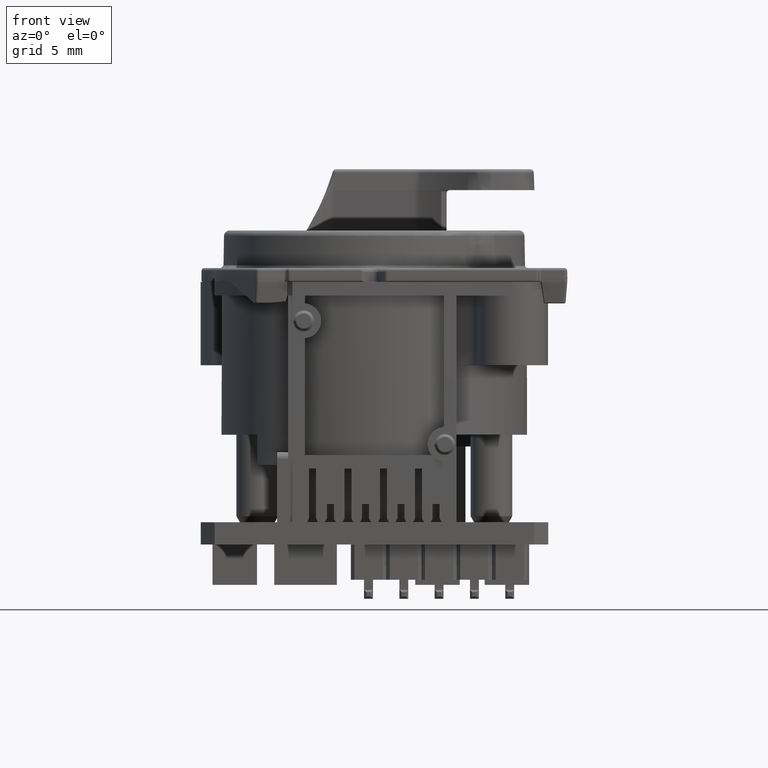
[diagram: clean part render]
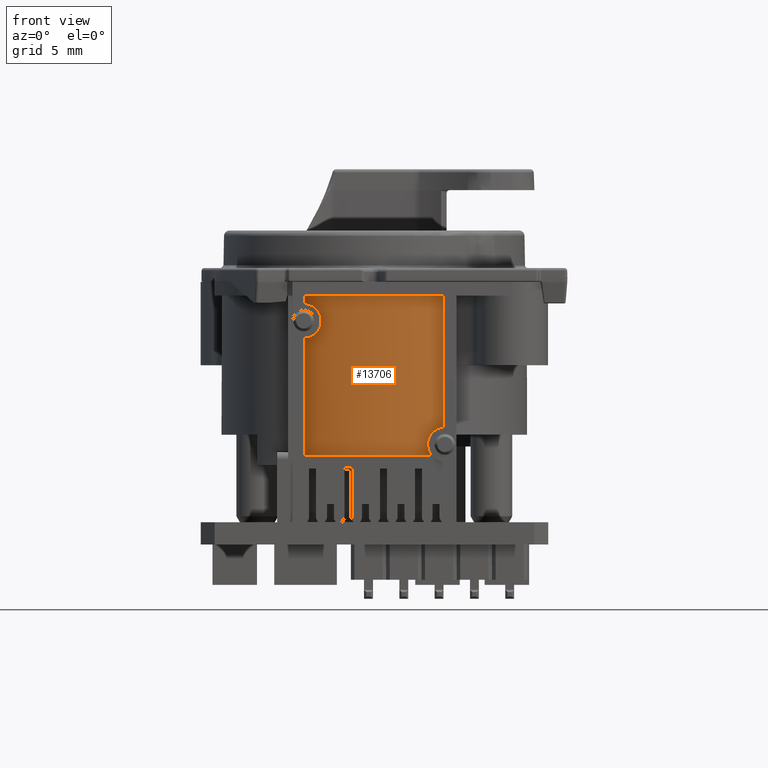
[diagram: same view with one face highlighted and labeled with its STEP entity id]
A machine part, front view. The second image highlights one B-rep face of the part: STEP entity #13706.
In plain terms, the highlighted cylindrical surface (partial cylindrical patch) has radius 11 mm, axis along (0, 0, -1).
Its self-contained STEP definition (entity closure, byte-faithful):
#3893=CARTESIAN_POINT('',(0.E0,0.E0,-4.7E0));
#3894=DIRECTION('',(0.E0,0.E0,1.E0));
#3895=DIRECTION('',(-4.545454545455E-1,-8.907235428302E-1,0.E0));
#3896=AXIS2_PLACEMENT_3D('',#3893,#3894,#3895);
#4308=CARTESIAN_POINT('',(5.E0,-9.797958971133E0,-1.415256262682E1));
#4309=CARTESIAN_POINT('',(4.897125523116E0,-9.850456882783E0,
-1.415916011887E1));
#4310=CARTESIAN_POINT('',(4.698474136582E0,-9.947838120106E0,
-1.419652270781E1));
#4311=CARTESIAN_POINT('',(4.413076262974E0,-1.007736703551E1,
-1.432729839532E1));
#4312=CARTESIAN_POINT('',(4.171299791320E0,-1.017926649467E1,
-1.452365884376E1));
#4313=CARTESIAN_POINT('',(3.991416086267E0,-1.025069275113E1,
-1.476322448407E1));
#4314=CARTESIAN_POINT('',(3.874850985221E0,-1.029505363697E1,
-1.502705225234E1));
#4315=CARTESIAN_POINT('',(3.819405177769E0,-1.031561811655E1,
-1.532758277474E1));
#4316=CARTESIAN_POINT('',(3.839778898495E0,-1.030810581460E1,
-1.563412062213E1));
#4317=CARTESIAN_POINT('',(3.929630891066E0,-1.027439247175E1,
-1.591646075733E1));
#4318=CARTESIAN_POINT('',(4.026162814756E0,-1.023688732172E1,
-1.607898723793E1));
#4319=CARTESIAN_POINT('',(4.083769604961E0,-1.021385460116E1,-1.6155E1));
#4321=DIRECTION('',(0.E0,0.E0,1.E0));
#4322=VECTOR('',#4321,8.397562626822E0);
#4323=CARTESIAN_POINT('',(-5.E0,-9.797958971133E0,-1.6155E1));
#4324=LINE('',#4323,#4322);
#4325=CARTESIAN_POINT('',(-5.E0,-9.797958971133E0,-7.757437373178E0));
#4326=CARTESIAN_POINT('',(-4.892810749385E0,-9.852658756532E0,
-7.750563168321E0));
#4327=CARTESIAN_POINT('',(-4.686449029035E0,-9.953643590032E0,
-7.710696539986E0));
#4328=CARTESIAN_POINT('',(-4.390889203614E0,-1.008713261490E1,
-7.569924107466E0));
#4329=CARTESIAN_POINT('',(-4.145104639199E0,-1.018995884884E1,
-7.359573455445E0));
#4330=CARTESIAN_POINT('',(-3.967858237797E0,-1.025980738586E1,
-7.106399619547E0));
#4331=CARTESIAN_POINT('',(-3.857764380381E0,-1.030143573430E1,
-6.826553498688E0));
#4332=CARTESIAN_POINT('',(-3.816183979662E0,-1.031680269226E1,
-6.510508549565E0));
#4333=CARTESIAN_POINT('',(-3.857500097526E0,-1.030153679826E1,
-6.193851216145E0));
#4334=CARTESIAN_POINT('',(-3.968580394801E0,-1.025952899767E1,
-5.912271081088E0));
#4335=CARTESIAN_POINT('',(-4.144779291491E0,-1.019007926154E1,
-5.661066536683E0));
#4336=CARTESIAN_POINT('',(-4.389655956410E0,-1.008766903868E1,
-5.450832767280E0));
#4337=CARTESIAN_POINT('',(-4.685903850160E0,-9.953909454165E0,
-5.309408751606E0));
#4338=CARTESIAN_POINT('',(-4.892586505340E0,-9.852773190592E0,
-5.269451212781E0));
#4339=CARTESIAN_POINT('',(-5.E0,-9.797958971133E0,-5.262562626822E0));
#4341=DIRECTION('',(0.E0,0.E0,1.E0));
#4342=VECTOR('',#4341,5.625626268225E-1);
#4343=CARTESIAN_POINT('',(-5.E0,-9.797958971133E0,-5.262562626822E0));
#4344=LINE('',#4343,#4342);
#4349=CARTESIAN_POINT('',(0.E0,0.E0,-1.6155E1));
#4350=DIRECTION('',(0.E0,0.E0,1.E0));
#4351=DIRECTION('',(-4.545454545455E-1,-8.907235428302E-1,0.E0));
#4352=AXIS2_PLACEMENT_3D('',#4349,#4350,#4351);
#4362=DIRECTION('',(0.E0,0.E0,1.E0));
#4363=VECTOR('',#4362,9.452562626822E0);
#4364=CARTESIAN_POINT('',(5.E0,-9.797958971133E0,-1.415256262682E1));
#4365=LINE('',#4364,#4363);
#6817=CARTESIAN_POINT('',(-5.E0,-9.797958971133E0,-4.7E0));
#6818=CARTESIAN_POINT('',(5.E0,-9.797958971133E0,-4.7E0));
#6819=VERTEX_POINT('',#6817);
#6820=VERTEX_POINT('',#6818);
#6826=CARTESIAN_POINT('',(-5.E0,-9.797958971133E0,-1.6155E1));
#6828=VERTEX_POINT('',#6826);
#6853=CARTESIAN_POINT('',(4.083769604961E0,-1.021385460116E1,-1.6155E1));
#6854=VERTEX_POINT('',#6853);
#6855=CARTESIAN_POINT('',(-5.E0,-9.797958971133E0,-7.757437373178E0));
#6856=VERTEX_POINT('',#6855);
#6857=VERTEX_POINT('',#4308);
#6858=VERTEX_POINT('',#4339);
#13690=CARTESIAN_POINT('',(0.E0,0.E0,-1.6155E1));
#13691=DIRECTION('',(0.E0,0.E0,-1.E0));
#13692=DIRECTION('',(1.E0,0.E0,0.E0));
#13693=AXIS2_PLACEMENT_3D('',#13690,#13691,#13692);
#13694=CYLINDRICAL_SURFACE('',#13693,1.1E1);
#13695=ORIENTED_EDGE('',*,*,#13604,.T.);
#13697=ORIENTED_EDGE('',*,*,#13696,.F.);
#13698=ORIENTED_EDGE('',*,*,#13682,.T.);
#13699=ORIENTED_EDGE('',*,*,#13656,.T.);
#13700=ORIENTED_EDGE('',*,*,#13670,.T.);
#13701=ORIENTED_EDGE('',*,*,#13313,.T.);
#13703=ORIENTED_EDGE('',*,*,#13702,.F.);
#13704=EDGE_LOOP('',(#13695,#13697,#13698,#13699,#13700,#13701,#13703));
#13705=FACE_OUTER_BOUND('',#13704,.F.);
#13706=ADVANCED_FACE('',(#13705),#13694,.T.);
#3897=CIRCLE('',#3896,1.1E1);
#4320=B_SPLINE_CURVE_WITH_KNOTS('',3,(#4308,#4309,#4310,#4311,#4312,#4313,#4314,
#4315,#4316,#4317,#4318,#4319),.UNSPECIFIED.,.F.,.F.,(4,1,1,1,1,1,1,1,1,4),
(0.E0,1.111111111111E-1,2.222222222222E-1,3.333333333333E-1,4.444444444444E-1,
5.555555555556E-1,6.666666666667E-1,7.777777777778E-1,8.888888888889E-1,1.E0),
.UNSPECIFIED.);
#4340=B_SPLINE_CURVE_WITH_KNOTS('',3,(#4325,#4326,#4327,#4328,#4329,#4330,#4331,
#4332,#4333,#4334,#4335,#4336,#4337,#4338,#4339),.UNSPECIFIED.,.F.,.F.,(4,1,1,1,
1,1,1,1,1,1,1,1,4),(0.E0,8.333333333333E-2,1.666666666667E-1,2.5E-1,
3.333333333333E-1,4.166666666667E-1,5.E-1,5.833333333333E-1,6.666666666667E-1,
7.5E-1,8.333333333333E-1,9.166666666667E-1,1.E0),.UNSPECIFIED.);
#4353=CIRCLE('',#4352,1.1E1);
#13313=EDGE_CURVE('',#6819,#6820,#3897,.T.);
#13604=EDGE_CURVE('',#6857,#6854,#4320,.T.);
#13656=EDGE_CURVE('',#6856,#6858,#4340,.T.);
#13670=EDGE_CURVE('',#6858,#6819,#4344,.T.);
#13682=EDGE_CURVE('',#6828,#6856,#4324,.T.);
#13696=EDGE_CURVE('',#6828,#6854,#4353,.T.);
#13702=EDGE_CURVE('',#6857,#6820,#4365,.T.);